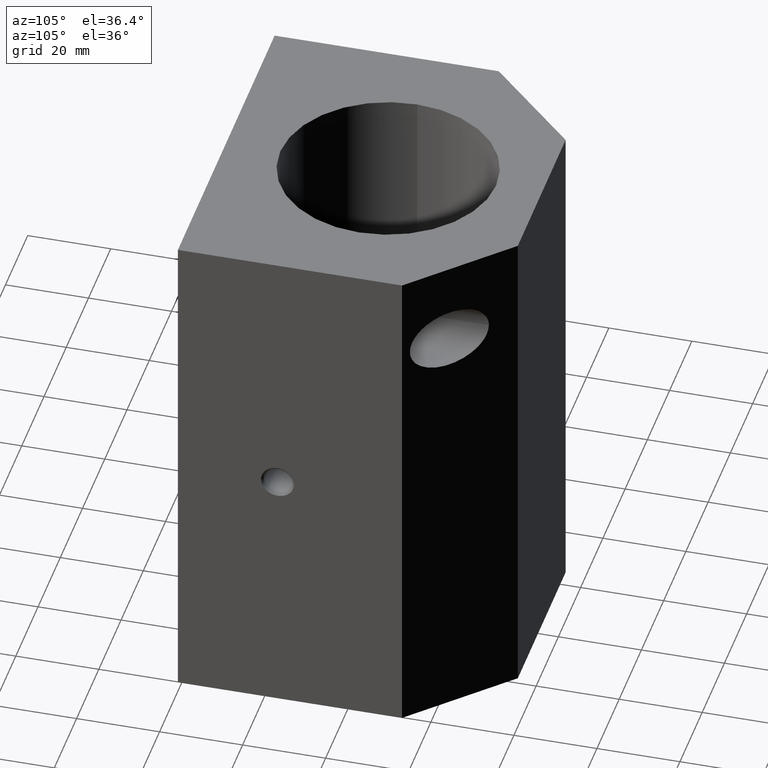
[diagram: clean part render]
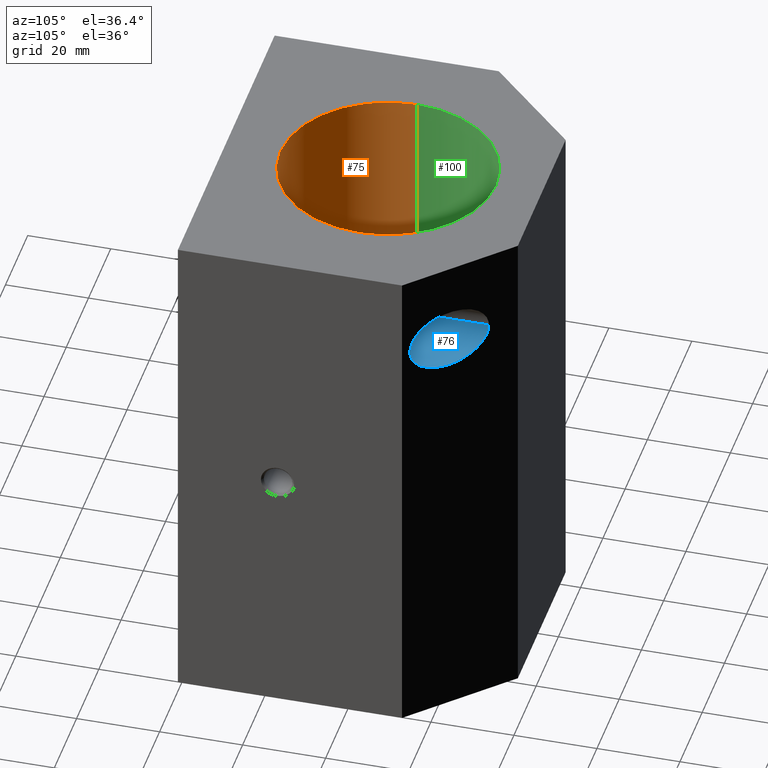
[diagram: same view with three faces highlighted in distinct colors, each labeled with its STEP entity id]
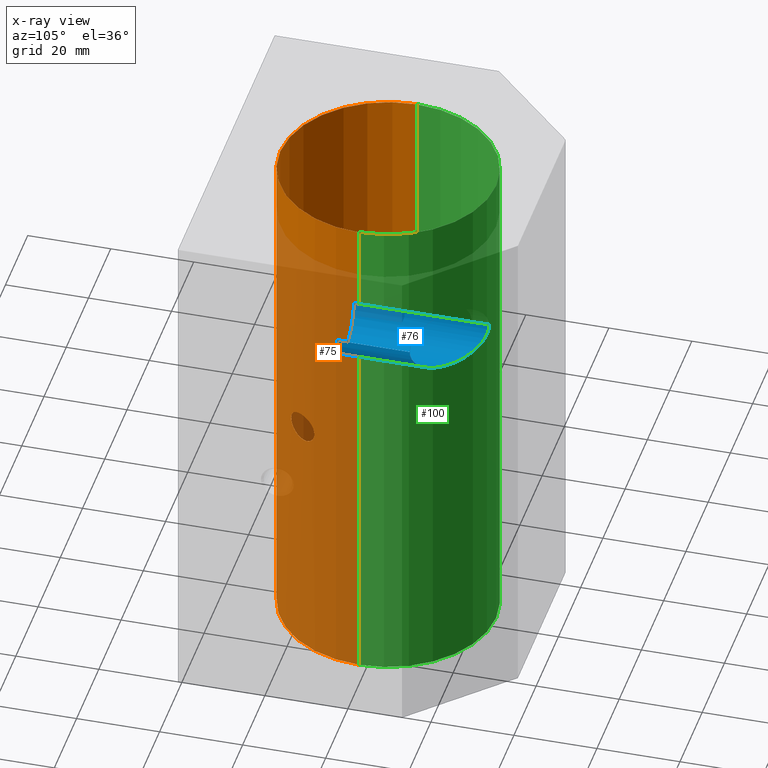
[diagram: x-ray of the same camera — body ghosted, the three highlighted faces saturated]
A machine part, auxiliary view with three faces highlighted in distinct colors.
The next image is the same camera in x-ray (body ghosted, the three faces saturated) — at least one of them is partly hidden behind the body in this view.
Their STEP definitions:

[orange] entity #75 — the highlighted cylindrical surface (partial cylindrical patch) has radius 26 mm, axis along (-0, -0, -1).
#75 = ADVANCED_FACE( '', ( #110, #111 ), #112, .F. );
#110 = FACE_OUTER_BOUND( '', #190, .T. );
#111 = FACE_BOUND( '', #191, .T. );
#112 = CYLINDRICAL_SURFACE( '', #192, 26.0000000000000 );
#190 = EDGE_LOOP( '', ( #270, #271, #272, #273 ) );
#191 = EDGE_LOOP( '', ( #274, #275 ) );
#192 = AXIS2_PLACEMENT_3D( '', #276, #277, #278 );
#270 = ORIENTED_EDGE( '', *, *, #528, .F. );
#271 = ORIENTED_EDGE( '', *, *, #529, .F. );
#272 = ORIENTED_EDGE( '', *, *, #530, .F. );
#273 = ORIENTED_EDGE( '', *, *, #531, .T. );
#274 = ORIENTED_EDGE( '', *, *, #532, .T. );
#275 = ORIENTED_EDGE( '', *, *, #533, .T. );
#276 = CARTESIAN_POINT( '', ( 0.000000000000000, 39.0000000000000, 0.000000000000000 ) );
#277 = DIRECTION( '', ( -0.000000000000000, -0.000000000000000, -1.00000000000000 ) );
#278 = DIRECTION( '', ( 1.00000000000000, 0.000000000000000, 0.000000000000000 ) );
#528 = EDGE_CURVE( '', #606, #607, #608, .T. );
#529 = EDGE_CURVE( '', #609, #606, #610, .T. );
#530 = EDGE_CURVE( '', #611, #609, #612, .T. );
#531 = EDGE_CURVE( '', #611, #607, #613, .T. );
#532 = EDGE_CURVE( '', #614, #615, #616, .T. );
#533 = EDGE_CURVE( '', #615, #614, #617, .T. );
#606 = VERTEX_POINT( '', #734 );
#607 = VERTEX_POINT( '', #735 );
#608 = LINE( '', #736, #737 );
#609 = VERTEX_POINT( '', #738 );
#610 = CIRCLE( '', #739, 26.0000000000000 );
#611 = VERTEX_POINT( '', #740 );
#612 = LINE( '', #741, #742 );
#613 = CIRCLE( '', #743, 26.0000000000000 );
#614 = VERTEX_POINT( '', #744 );
#615 = VERTEX_POINT( '', #745 );
#616 = B_SPLINE_CURVE_WITH_KNOTS( '', 3, ( #746, #747, #748, #749, #750, #751, #752, #753, #754, #755, #756, #757, #758, #759, #760, #761, #762, #763, #764, #765, #766, #767, #768, #769, #770, #771, #772, #773, #774, #775, #776, #777, #778, #779 ), .UNSPECIFIED., .F., .F., ( 4, 2, 2, 2, 2, 2, 2, 2, 2, 2, 2, 2, 2, 2, 2, 2, 4 ), ( 0.000000000000000, 0.655575457076655, 1.31115091415331, 1.96672637122997, 2.62230182830662, 3.47268529179448, 4.32306875528234, 5.17345221877019, 6.02383568225805, 6.79854208263105, 7.57324848300405, 8.34795488337705, 9.12266128375005, 9.76571157165495, 10.4087618595598, 11.0518121474648, 11.6948624353697 ), .UNSPECIFIED. );
#617 = B_SPLINE_CURVE_WITH_KNOTS( '', 3, ( #780, #781, #782, #783, #784, #785, #786, #787, #788, #789, #790, #791, #792, #793, #794, #795, #796, #797, #798, #799, #800, #801, #802, #803, #804, #805, #806, #807, #808, #809, #810, #811, #812, #813 ), .UNSPECIFIED., .F., .F., ( 4, 2, 2, 2, 2, 2, 2, 2, 2, 2, 2, 2, 2, 2, 2, 2, 4 ), ( 11.6948624353697, 12.3379127232746, 12.9809630111795, 13.6240132990844, 14.2670635869893, 15.0417699873623, 15.8164763877353, 16.5911827881083, 17.3658891884813, 18.2162726519691, 19.0666561154570, 19.9170395789448, 20.7674230424327, 21.4229984995093, 22.0785739565860, 22.7341494136626, 23.3897248707393 ), .UNSPECIFIED. );
#734 = CARTESIAN_POINT( '', ( 26.0000000000000, 39.0000000000000, 0.000000000000000 ) );
#735 = CARTESIAN_POINT( '', ( 26.0000000000000, 39.0000000000000, 125.000000000000 ) );
#736 = CARTESIAN_POINT( '', ( 26.0000000000000, 39.0000000000000, 0.000000000000000 ) );
#737 = VECTOR( '', #968, 1.00000000000000 );
#738 = CARTESIAN_POINT( '', ( -26.0000000000000, 39.0000000000000, 0.000000000000000 ) );
#739 = AXIS2_PLACEMENT_3D( '', #969, #970, #971 );
#740 = CARTESIAN_POINT( '', ( -26.0000000000000, 39.0000000000000, 125.000000000000 ) );
#741 = CARTESIAN_POINT( '', ( -26.0000000000000, 39.0000000000000, 0.000000000000000 ) );
#742 = VECTOR( '', #972, 1.00000000000000 );
#743 = AXIS2_PLACEMENT_3D( '', #973, #974, #975 );
#744 = CARTESIAN_POINT( '', ( 18.3105239353520, 20.5412700000000, 62.5000000000000 ) );
#745 = CARTESIAN_POINT( '', ( 23.2980489910014, 27.4587300000000, 62.5000000000000 ) );
#746 = CARTESIAN_POINT( '', ( 18.3105239353520, 20.5412700000000, 62.5000000000000 ) );
#747 = CARTESIAN_POINT( '', ( 18.3105239353520, 20.5412700000000, 62.2814748476411 ) );
#748 = CARTESIAN_POINT( '', ( 18.3318074656689, 20.5623114398568, 62.0596892097588 ) );
#749 = CARTESIAN_POINT( '', ( 18.4158145983134, 20.6462184530284, 61.6260860622111 ) );
#750 = CARTESIAN_POINT( '', ( 18.4784590773765, 20.7090417196112, 61.4142450411865 ) );
#751 = CARTESIAN_POINT( '', ( 18.6357304455384, 20.8693035121447, 61.0140623471095 ) );
#752 = CARTESIAN_POINT( '', ( 18.7304363792131, 20.9668779962119, 60.8252478678497 ) );
#753 = CARTESIAN_POINT( '', ( 18.9383330567220, 21.1853353331670, 60.4795330714577 ) );
#754 = CARTESIAN_POINT( '', ( 19.0514764499878, 21.3062197179454, 60.3226052500849 ) );
#755 = CARTESIAN_POINT( '', ( 19.3140600422384, 21.5926672446534, 60.0048192784100 ) );
#756 = CARTESIAN_POINT( '', ( 19.4770712373159, 21.7746684811185, 59.8410171307806 ) );
#757 = CARTESIAN_POINT( '', ( 19.8195102329613, 22.1698079617570, 59.5550573228539 ) );
#758 = CARTESIAN_POINT( '', ( 19.9989070582752, 22.3829583195026, 59.4328793093321 ) );
#759 = CARTESIAN_POINT( '', ( 20.3608181172149, 22.8284372002986, 59.2366437809386 ) );
#760 = CARTESIAN_POINT( '', ( 20.5434610596268, 23.0609550106988, 59.1625425187193 ) );
#761 = CARTESIAN_POINT( '', ( 20.8996632050142, 23.5309655958470, 59.0648239260579 ) );
#762 = CARTESIAN_POINT( '', ( 21.0732253001553, 23.7684693587610, 59.0412700000000 ) );
#763 = CARTESIAN_POINT( '', ( 21.3857425816670, 24.2109263377660, 59.0412700000000 ) );
#764 = CARTESIAN_POINT( '', ( 21.5374887733980, 24.4326128009347, 59.0608490151291 ) );
#765 = CARTESIAN_POINT( '', ( 21.8339386175129, 24.8808174132763, 59.1475271787405 ) );
#766 = CARTESIAN_POINT( '', ( 21.9786455369909, 25.1073306107853, 59.2146407572499 ) );
#767 = CARTESIAN_POINT( '', ( 22.2511233110578, 25.5480621028012, 59.3978603278200 ) );
#768 = CARTESIAN_POINT( '', ( 22.3790969383305, 25.7625635655454, 59.5141185520516 ) );
#769 = CARTESIAN_POINT( '', ( 22.6114946971048, 26.1635670573654, 59.7905543121781 ) );
#770 = CARTESIAN_POINT( '', ( 22.7159433373662, 26.3500323508431, 59.9507645304133 ) );
#771 = CARTESIAN_POINT( '', ( 22.8821185358780, 26.6536121893891, 60.2725753430913 ) );
#772 = CARTESIAN_POINT( '', ( 22.9525345517006, 26.7853055388540, 60.4380746478364 ) );
#773 = CARTESIAN_POINT( '', ( 23.0759979756943, 27.0201869568681, 60.8006077992690 ) );
#774 = CARTESIAN_POINT( '', ( 23.1290768829439, 27.1233600597773, 60.9976406139471 ) );
#775 = CARTESIAN_POINT( '', ( 23.2140477996373, 27.2903135061477, 61.4108262025189 ) );
#776 = CARTESIAN_POINT( '', ( 23.2460434895078, 27.3542421353064, 61.6273729614157 ) );
#777 = CARTESIAN_POINT( '', ( 23.2880440961295, 27.4384596037536, 62.0647830357417 ) );
#778 = CARTESIAN_POINT( '', ( 23.2980489910014, 27.4587300000000, 62.2856499040317 ) );
#779 = CARTESIAN_POINT( '', ( 23.2980489910014, 27.4587300000000, 62.5000000000000 ) );
#780 = CARTESIAN_POINT( '', ( 23.2980489910014, 27.4587300000000, 62.5000000000000 ) );
#781 = CARTESIAN_POINT( '', ( 23.2980489910014, 27.4587300000000, 62.7143500959683 ) );
#782 = CARTESIAN_POINT( '', ( 23.2880440961295, 27.4384596037536, 62.9352169642583 ) );
#783 = CARTESIAN_POINT( '', ( 23.2460434895078, 27.3542421353064, 63.3726270385843 ) );
#784 = CARTESIAN_POINT( '', ( 23.2140477996373, 27.2903135061478, 63.5891737974811 ) );
#785 = CARTESIAN_POINT( '', ( 23.1290768829439, 27.1233600597773, 64.0023593860529 ) );
#786 = CARTESIAN_POINT( '', ( 23.0759979756943, 27.0201869568681, 64.1993922007310 ) );
#787 = CARTESIAN_POINT( '', ( 22.9525345517005, 26.7853055388540, 64.5619253521636 ) );
#788 = CARTESIAN_POINT( '', ( 22.8821185358780, 26.6536121893891, 64.7274246569087 ) );
#789 = CARTESIAN_POINT( '', ( 22.7159433373662, 26.3500323508431, 65.0492354695867 ) );
#790 = CARTESIAN_POINT( '', ( 22.6114946971048, 26.1635670573654, 65.2094456878219 ) );
#791 = CARTESIAN_POINT( '', ( 22.3790969383305, 25.7625635655455, 65.4858814479484 ) );
#792 = CARTESIAN_POINT( '', ( 22.2511233110578, 25.5480621028012, 65.6021396721800 ) );
#793 = CARTESIAN_POINT( '', ( 21.9786455369909, 25.1073306107853, 65.7853592427500 ) );
#794 = CARTESIAN_POINT( '', ( 21.8339386175129, 24.8808174132763, 65.8524728212595 ) );
#795 = CARTESIAN_POINT( '', ( 21.5374887733980, 24.4326128009347, 65.9391509848709 ) );
#796 = CARTESIAN_POINT( '', ( 21.3857425816670, 24.2109263377660, 65.9587300000000 ) );
#797 = CARTESIAN_POINT( '', ( 21.0732253001553, 23.7684693587610, 65.9587300000000 ) );
#798 = CARTESIAN_POINT( '', ( 20.8996632050142, 23.5309655958470, 65.9351760739421 ) );
#799 = CARTESIAN_POINT( '', ( 20.5434610596268, 23.0609550106988, 65.8374574812807 ) );
#800 = CARTESIAN_POINT( '', ( 20.3608181172149, 22.8284372002986, 65.7633562190614 ) );
#801 = CARTESIAN_POINT( '', ( 19.9989070582752, 22.3829583195026, 65.5671206906679 ) );
#802 = CARTESIAN_POINT( '', ( 19.8195102329613, 22.1698079617570, 65.4449426771461 ) );
#803 = CARTESIAN_POINT( '', ( 19.4770712373159, 21.7746684811185, 65.1589828692194 ) );
#804 = CARTESIAN_POINT( '', ( 19.3140600422384, 21.5926672446534, 64.9951807215900 ) );
#805 = CARTESIAN_POINT( '', ( 19.0514764499878, 21.3062197179454, 64.6773947499151 ) );
#806 = CARTESIAN_POINT( '', ( 18.9383330567220, 21.1853353331670, 64.5204669285423 ) );
#807 = CARTESIAN_POINT( '', ( 18.7304363792131, 20.9668779962119, 64.1747521321503 ) );
#808 = CARTESIAN_POINT( '', ( 18.6357304455384, 20.8693035121447, 63.9859376528905 ) );
#809 = CARTESIAN_POINT( '', ( 18.4784590773765, 20.7090417196112, 63.5857549588135 ) );
#810 = CARTESIAN_POINT( '', ( 18.4158145983134, 20.6462184530284, 63.3739139377889 ) );
#811 = CARTESIAN_POINT( '', ( 18.3318074656689, 20.5623114398568, 62.9403107902412 ) );
#812 = CARTESIAN_POINT( '', ( 18.3105239353520, 20.5412700000000, 62.7185251523589 ) );
#813 = CARTESIAN_POINT( '', ( 18.3105239353520, 20.5412700000000, 62.5000000000000 ) );
#968 = DIRECTION( '', ( -0.000000000000000, -0.000000000000000, 1.00000000000000 ) );
#969 = CARTESIAN_POINT( '', ( 0.000000000000000, 39.0000000000000, 0.000000000000000 ) );
#970 = DIRECTION( '', ( 0.000000000000000, -0.000000000000000, 1.00000000000000 ) );
#971 = DIRECTION( '', ( 1.00000000000000, 0.000000000000000, 0.000000000000000 ) );
#972 = DIRECTION( '', ( -0.000000000000000, 0.000000000000000, -1.00000000000000 ) );
#973 = CARTESIAN_POINT( '', ( 0.000000000000000, 39.0000000000000, 125.000000000000 ) );
#974 = DIRECTION( '', ( 0.000000000000000, 0.000000000000000, 1.00000000000000 ) );
#975 = DIRECTION( '', ( 1.00000000000000, 0.000000000000000, 0.000000000000000 ) );

[blue] entity #76 — the highlighted cylindrical surface (edge-blend (fillet) strip) has radius 7.5 mm, axis along (0, -1, -0).
#76 = ADVANCED_FACE( '', ( #113 ), #114, .F. );
#113 = FACE_OUTER_BOUND( '', #193, .T. );
#114 = CYLINDRICAL_SURFACE( '', #194, 7.50000000000000 );
#193 = EDGE_LOOP( '', ( #279, #280, #281, #282 ) );
#194 = AXIS2_PLACEMENT_3D( '', #283, #284, #285 );
#279 = ORIENTED_EDGE( '', *, *, #534, .F. );
#280 = ORIENTED_EDGE( '', *, *, #535, .F. );
#281 = ORIENTED_EDGE( '', *, *, #536, .F. );
#282 = ORIENTED_EDGE( '', *, *, #537, .F. );
#283 = CARTESIAN_POINT( '', ( 34.5000000000000, 57.0000000000000, 105.000000000000 ) );
#284 = DIRECTION( '', ( 0.000000000000000, -1.00000000000000, -0.000000000000000 ) );
#285 = DIRECTION( '', ( 1.00000000000000, 0.000000000000000, 0.000000000000000 ) );
#534 = EDGE_CURVE( '', #618, #619, #620, .T. );
#535 = EDGE_CURVE( '', #621, #618, #622, .T. );
#536 = EDGE_CURVE( '', #623, #621, #624, .T. );
#537 = EDGE_CURVE( '', #619, #623, #625, .T. );
#618 = VERTEX_POINT( '', #814 );
#619 = VERTEX_POINT( '', #815 );
#620 = LINE( '', #816, #817 );
#621 = VERTEX_POINT( '', #818 );
#622 = ELLIPSE( '', #819, 10.6066017177982, 7.50000000000000 );
#623 = VERTEX_POINT( '', #820 );
#624 = LINE( '', #821, #822 );
#625 = CIRCLE( '', #823, 7.50000000000000 );
#814 = CARTESIAN_POINT( '', ( 42.0000000000000, 55.5000000000000, 105.000000000000 ) );
#815 = CARTESIAN_POINT( '', ( 42.0000000000000, 38.0000000000000, 105.000000000000 ) );
#816 = CARTESIAN_POINT( '', ( 42.0000000000000, 57.0000000000000, 105.000000000000 ) );
#817 = VECTOR( '', #976, 1.00000000000000 );
#818 = CARTESIAN_POINT( '', ( 27.0000000000000, 70.5000000000000, 105.000000000000 ) );
#819 = AXIS2_PLACEMENT_3D( '', #977, #978, #979 );
#820 = CARTESIAN_POINT( '', ( 27.0000000000000, 38.0000000000000, 105.000000000000 ) );
#821 = CARTESIAN_POINT( '', ( 27.0000000000000, 57.0000000000000, 105.000000000000 ) );
#822 = VECTOR( '', #980, 1.00000000000000 );
#823 = AXIS2_PLACEMENT_3D( '', #981, #982, #983 );
#976 = DIRECTION( '', ( -0.000000000000000, -1.00000000000000, -0.000000000000000 ) );
#977 = CARTESIAN_POINT( '', ( 34.5000000000000, 63.0000000000000, 105.000000000000 ) );
#978 = DIRECTION( '', ( -0.707106781186548, -0.707106781186548, 0.000000000000000 ) );
#979 = DIRECTION( '', ( 0.707106781186547, -0.707106781186547, 0.000000000000000 ) );
#980 = DIRECTION( '', ( -0.000000000000000, 1.00000000000000, 0.000000000000000 ) );
#981 = CARTESIAN_POINT( '', ( 34.5000000000000, 38.0000000000000, 105.000000000000 ) );
#982 = DIRECTION( '', ( -0.000000000000000, 1.00000000000000, 0.000000000000000 ) );
#983 = DIRECTION( '', ( 1.00000000000000, 0.000000000000000, 0.000000000000000 ) );

[green] entity #100 — the highlighted cylindrical surface (partial cylindrical patch) has radius 26 mm, axis along (-0, -0, -1).
#100 = ADVANCED_FACE( '', ( #165 ), #166, .F. );
#165 = FACE_OUTER_BOUND( '', #245, .T. );
#166 = CYLINDRICAL_SURFACE( '', #246, 26.0000000000000 );
#245 = EDGE_LOOP( '', ( #447, #448, #449, #450 ) );
#246 = AXIS2_PLACEMENT_3D( '', #451, #452, #453 );
#447 = ORIENTED_EDGE( '', *, *, #528, .T. );
#448 = ORIENTED_EDGE( '', *, *, #586, .T. );
#449 = ORIENTED_EDGE( '', *, *, #530, .T. );
#450 = ORIENTED_EDGE( '', *, *, #587, .F. );
#451 = CARTESIAN_POINT( '', ( 0.000000000000000, 39.0000000000000, 0.000000000000000 ) );
#452 = DIRECTION( '', ( -0.000000000000000, -0.000000000000000, -1.00000000000000 ) );
#453 = DIRECTION( '', ( 1.00000000000000, 0.000000000000000, 0.000000000000000 ) );
#528 = EDGE_CURVE( '', #606, #607, #608, .T. );
#530 = EDGE_CURVE( '', #611, #609, #612, .T. );
#586 = EDGE_CURVE( '', #607, #611, #702, .T. );
#587 = EDGE_CURVE( '', #606, #609, #703, .T. );
#606 = VERTEX_POINT( '', #734 );
#607 = VERTEX_POINT( '', #735 );
#608 = LINE( '', #736, #737 );
#609 = VERTEX_POINT( '', #738 );
#611 = VERTEX_POINT( '', #740 );
#612 = LINE( '', #741, #742 );
#702 = CIRCLE( '', #918, 26.0000000000000 );
#703 = CIRCLE( '', #919, 26.0000000000000 );
#734 = CARTESIAN_POINT( '', ( 26.0000000000000, 39.0000000000000, 0.000000000000000 ) );
#735 = CARTESIAN_POINT( '', ( 26.0000000000000, 39.0000000000000, 125.000000000000 ) );
#736 = CARTESIAN_POINT( '', ( 26.0000000000000, 39.0000000000000, 0.000000000000000 ) );
#737 = VECTOR( '', #968, 1.00000000000000 );
#738 = CARTESIAN_POINT( '', ( -26.0000000000000, 39.0000000000000, 0.000000000000000 ) );
#740 = CARTESIAN_POINT( '', ( -26.0000000000000, 39.0000000000000, 125.000000000000 ) );
#741 = CARTESIAN_POINT( '', ( -26.0000000000000, 39.0000000000000, 0.000000000000000 ) );
#742 = VECTOR( '', #972, 1.00000000000000 );
#918 = AXIS2_PLACEMENT_3D( '', #1092, #1093, #1094 );
#919 = AXIS2_PLACEMENT_3D( '', #1095, #1096, #1097 );
#968 = DIRECTION( '', ( -0.000000000000000, -0.000000000000000, 1.00000000000000 ) );
#972 = DIRECTION( '', ( -0.000000000000000, 0.000000000000000, -1.00000000000000 ) );
#1092 = CARTESIAN_POINT( '', ( 0.000000000000000, 39.0000000000000, 125.000000000000 ) );
#1093 = DIRECTION( '', ( 0.000000000000000, 0.000000000000000, 1.00000000000000 ) );
#1094 = DIRECTION( '', ( 1.00000000000000, 0.000000000000000, 0.000000000000000 ) );
#1095 = CARTESIAN_POINT( '', ( 0.000000000000000, 39.0000000000000, 0.000000000000000 ) );
#1096 = DIRECTION( '', ( 0.000000000000000, -0.000000000000000, 1.00000000000000 ) );
#1097 = DIRECTION( '', ( 1.00000000000000, 0.000000000000000, 0.000000000000000 ) );